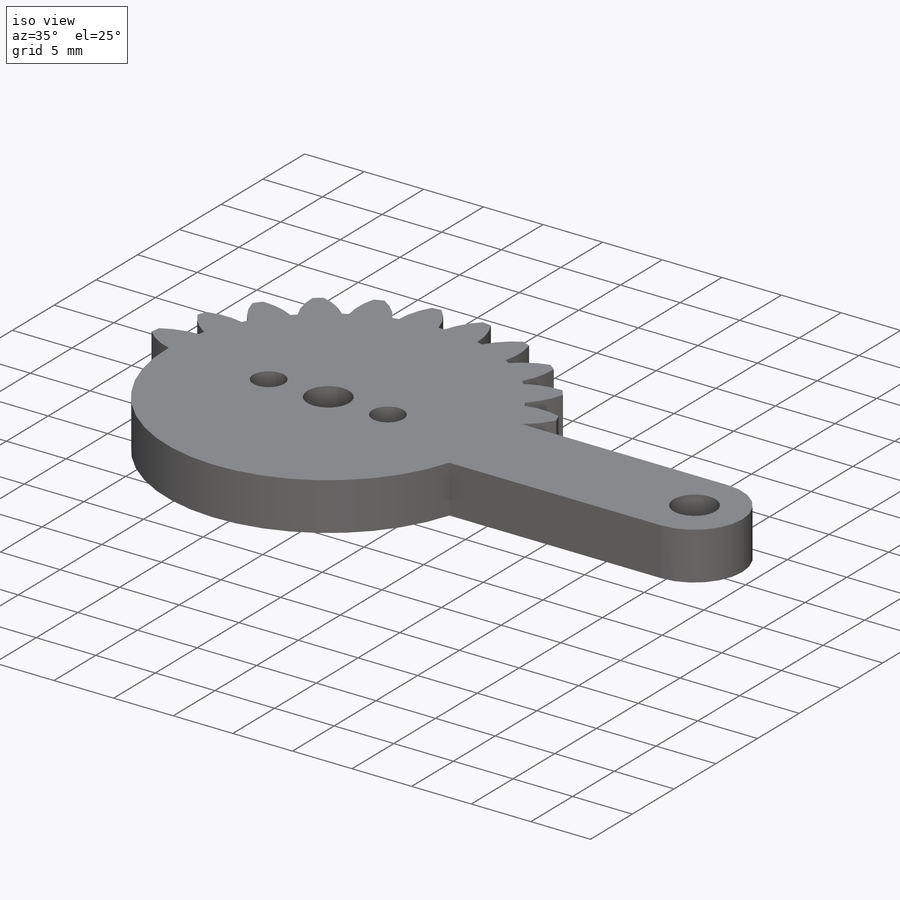
[diagram: iso view]
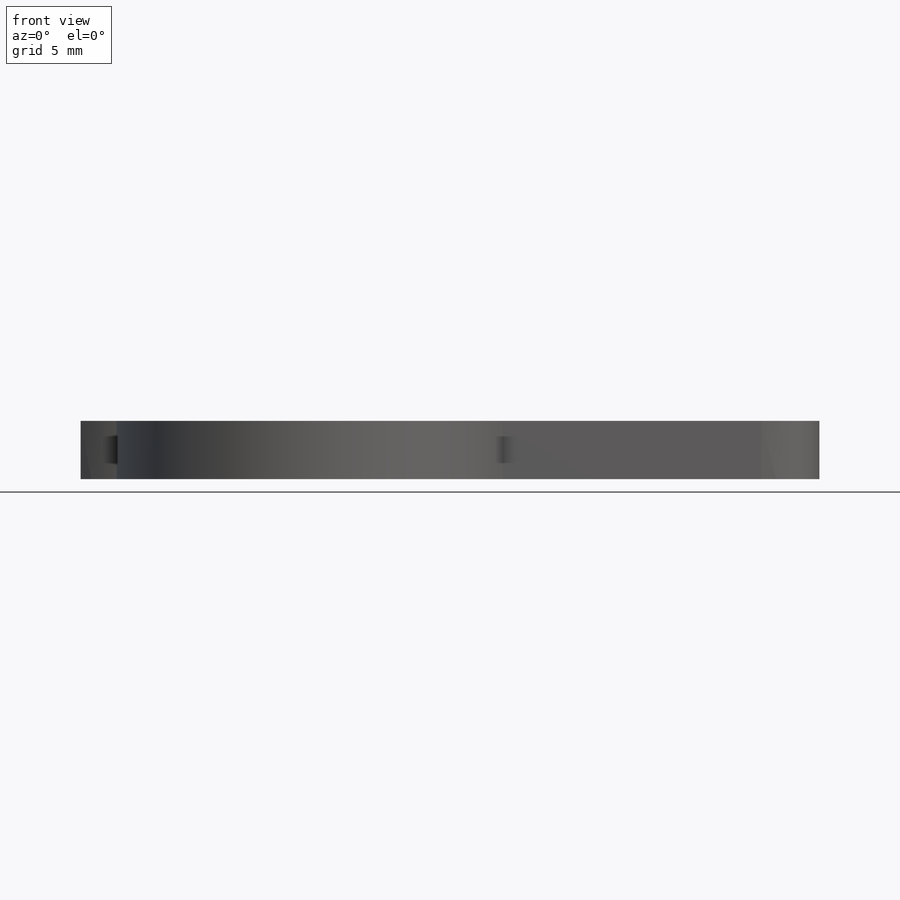
[diagram: front view]
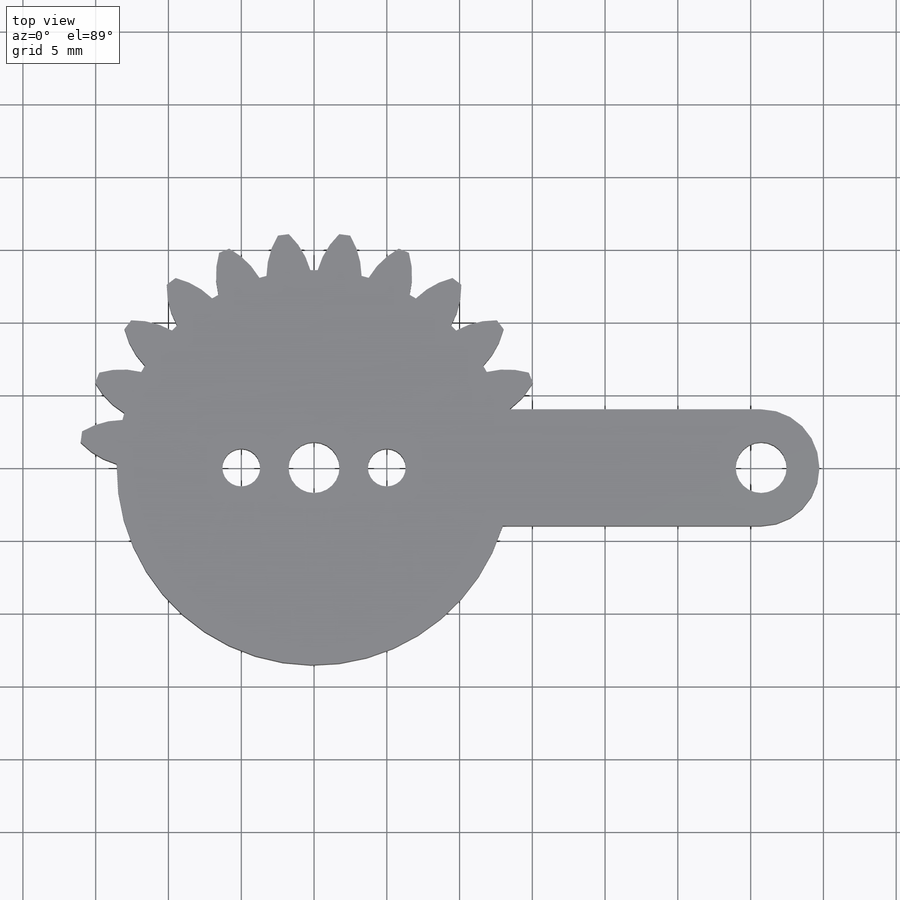
[diagram: top view]
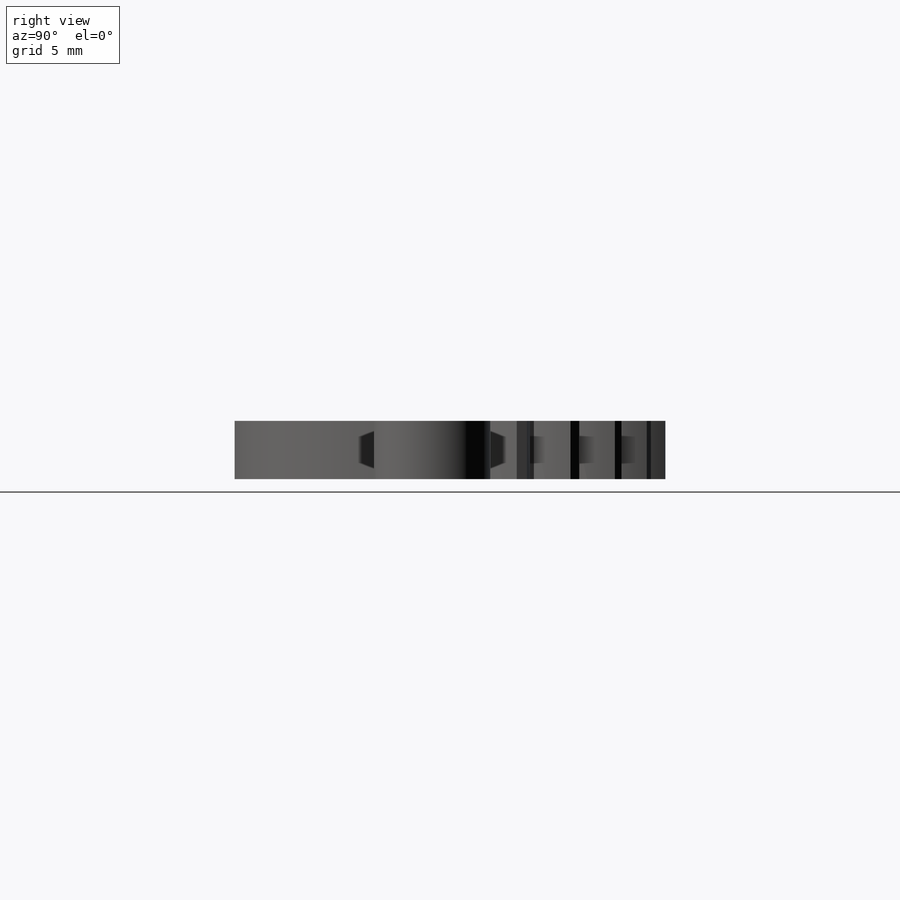
[diagram: right view]
SOLIDWORKS PART (.sldprt)
format: sldprt  version: not decoded by parser v0  size: 295,424 bytes
history: native  units: mm
features: sketch x4, plane x3, extrude x2, cut_extrude x2, material x1, pattern_circular x1 (+10 scaffold rows collapsed)
feature tree (23):
  scaffold x10  (default folders/planes/origin — collapsed)
  material  "Malzeme <belirli değil>"
  plane  "Ön Düzlem"
  plane  "Üst Düzlem"
  plane  "Sağ Düzlem"
  sketch  "Çizim1"  dims[c1.D1=32.26mm c1.D2=27.13mm c1.D3=3.5mm c1.D4=2.6mm c1.D5=2.6mm c1.D8=10.8mm c1.D9=24.13mm c1.D6=10.0mm c1.D7=5.0mm c2.D8=3.0mm c2.D9=0.5mm]
  sketch  "Çizim2"  dims[D1=32.26mm]
  extrude  "Yükseklik-Ekstrüzyon1"  Depth=4mm
  cut_extrude  "Kes-Ekstrüzyon2"  Depth=4mm
  pattern_circular  "Dairesel Kaplama2"  Count=24 Angle=360deg
  sketch  "Çizim4"  dims[D3=3.5mm D1=8.0mm D2=19.34mm]
  extrude  "Yükseklik-Ekstrüzyon2"  Depth=4mm
  sketch  "Çizim5"
  cut_extrude  "Kes-Ekstrüzyon3"  Depth=4mm
decode coverage: 8 of 9 modeling features carry decoded parameters
note: suppression state not decoded; provenance and decode notes live in map.json
